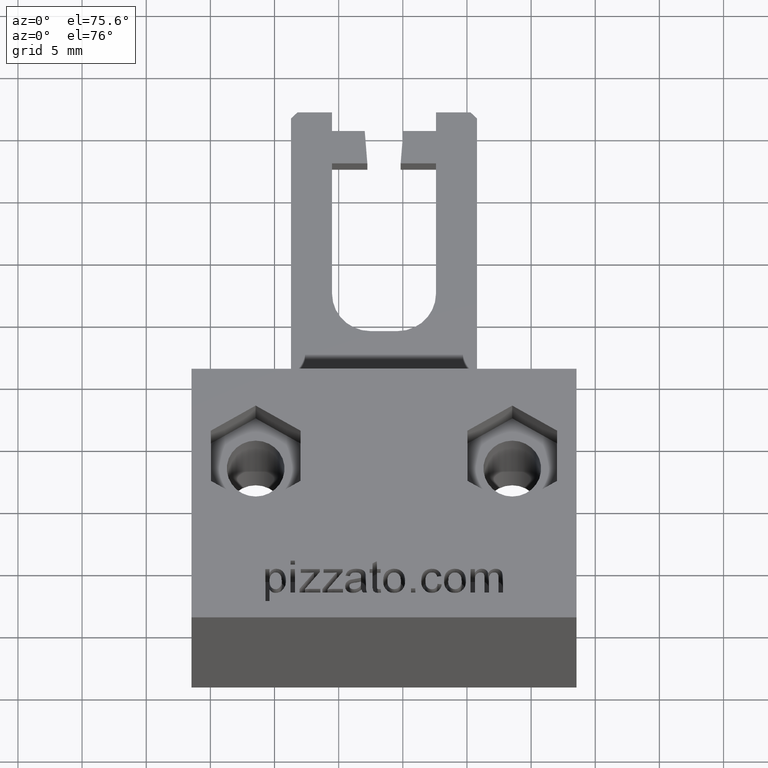
[diagram: clean part render]
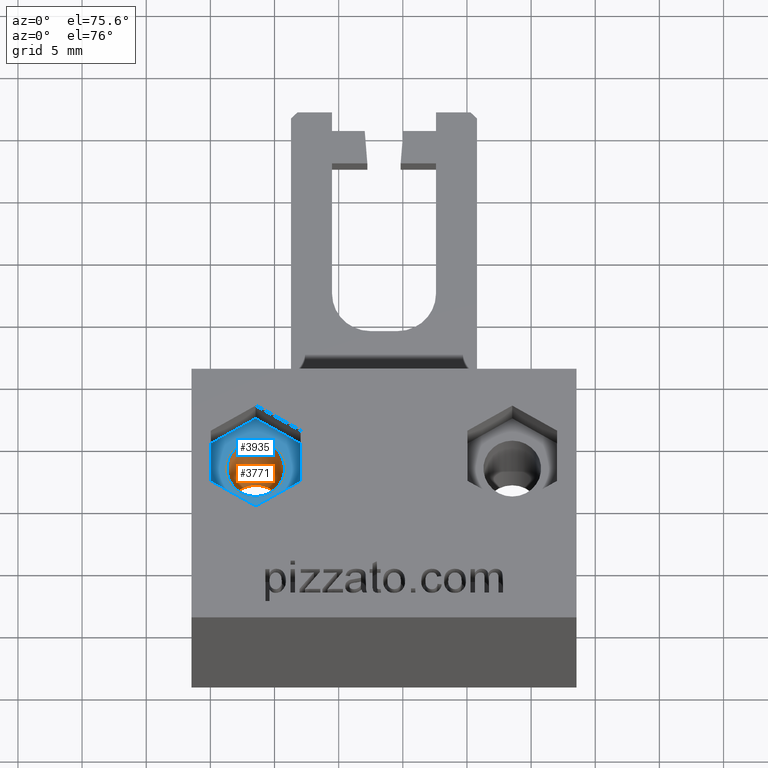
[diagram: same view with the hole feature highlighted: cylindrical wall and planar end face, labeled with their STEP entity ids]
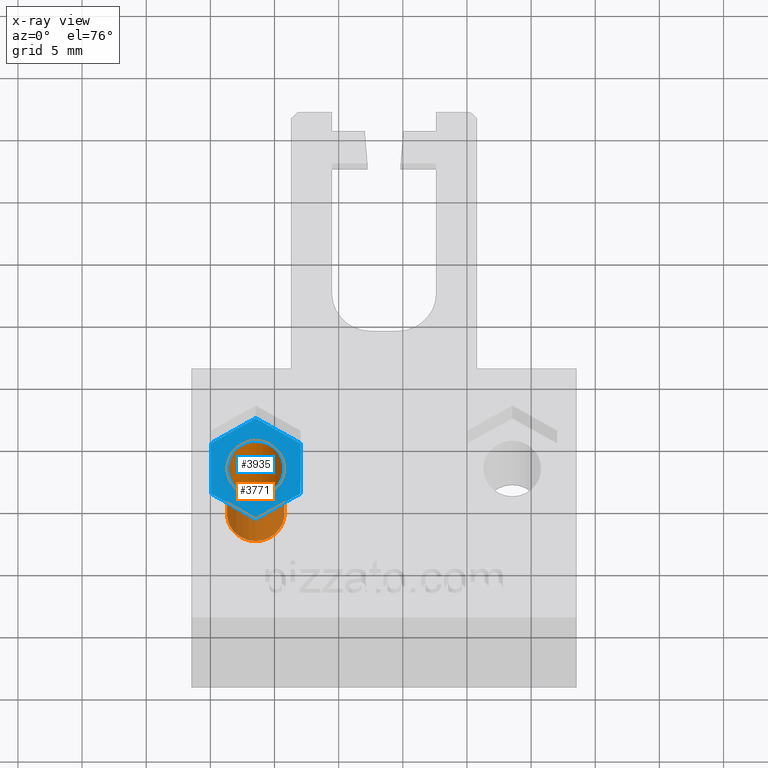
[diagram: x-ray of the same camera — body ghosted, the hole faces saturated]
A machine part, auxiliary view. The highlighted faces form one hole feature of diameter 4.5 mm: the cylindrical wall (entity #3771, orange) and its adjacent planar end face (entity #3935, blue) — they share a circular edge in the B-rep.
The next image is the same camera in x-ray (body ghosted, the hole faces saturated) — the bore reads through the body.
Wall:
#228=FACE_BOUND('',#522,.T.);
#264=CIRCLE('',#3983,2.25);
#266=CIRCLE('',#3993,2.25);
#270=CYLINDRICAL_SURFACE('',#3992,2.25);
#308=FACE_OUTER_BOUND('',#521,.T.);
#521=EDGE_LOOP('',(#2661));
#522=EDGE_LOOP('',(#2662));
#1598=VERTEX_POINT('',#4987);
#1612=VERTEX_POINT('',#5029);
#1998=EDGE_CURVE('',#1598,#1598,#264,.T.);
#2018=EDGE_CURVE('',#1612,#1612,#266,.T.);
#2661=ORIENTED_EDGE('',*,*,#1998,.T.);
#2662=ORIENTED_EDGE('',*,*,#2018,.T.);
#3771=ADVANCED_FACE('',(#308,#228),#270,.F.);
#3983=AXIS2_PLACEMENT_3D('',#4988,#4247,#4248);
#3992=AXIS2_PLACEMENT_3D('',#5028,#4283,#4284);
#3993=AXIS2_PLACEMENT_3D('',#5030,#4285,#4286);
#4247=DIRECTION('center_axis',(0.,0.,-1.));
#4248=DIRECTION('ref_axis',(-1.,0.,0.));
#4283=DIRECTION('center_axis',(0.,0.,-1.));
#4284=DIRECTION('ref_axis',(-1.,0.,0.));
#4285=DIRECTION('center_axis',(0.,0.,1.));
#4286=DIRECTION('ref_axis',(-1.,0.,0.));
#4987=CARTESIAN_POINT('',(10.7467227950761,25.002775558622,4.));
#4988=CARTESIAN_POINT('Origin',(12.9967227950761,25.002775558622,4.));
#5028=CARTESIAN_POINT('Origin',(12.9967227950761,25.002775558622,22.));
#5029=CARTESIAN_POINT('',(15.2467227950761,25.002775558622,18.));
#5030=CARTESIAN_POINT('Origin',(12.9967227950761,25.002775558622,18.));
End face:
#235=FACE_BOUND('',#693,.T.);
#266=CIRCLE('',#3993,2.25);
#472=FACE_OUTER_BOUND('',#692,.T.);
#692=EDGE_LOOP('',(#3405,#3406,#3407,#3408,#3409,#3410));
#693=EDGE_LOOP('',(#3411));
#1105=LINE('',#9805,#1518);
#1109=LINE('',#9812,#1522);
#1112=LINE('',#9818,#1525);
#1115=LINE('',#9824,#1528);
#1118=LINE('',#9830,#1531);
#1120=LINE('',#9833,#1533);
#1518=VECTOR('',#4760,4.04145240026689);
#1522=VECTOR('',#4766,4.04145159373737);
#1525=VECTOR('',#4771,4.04145196080003);
#1528=VECTOR('',#4776,4.04145159373749);
#1531=VECTOR('',#4781,4.041452400267);
#1533=VECTOR('',#4785,4.04145196080003);
#1612=VERTEX_POINT('',#5029);
#1902=VERTEX_POINT('',#9802);
#1903=VERTEX_POINT('',#9804);
#1905=VERTEX_POINT('',#9810);
#1907=VERTEX_POINT('',#9816);
#1909=VERTEX_POINT('',#9822);
#1911=VERTEX_POINT('',#9828);
#2018=EDGE_CURVE('',#1612,#1612,#266,.T.);
#2451=EDGE_CURVE('',#1902,#1903,#1105,.T.);
#2455=EDGE_CURVE('',#1905,#1902,#1109,.T.);
#2458=EDGE_CURVE('',#1907,#1905,#1112,.T.);
#2461=EDGE_CURVE('',#1909,#1907,#1115,.T.);
#2464=EDGE_CURVE('',#1911,#1909,#1118,.T.);
#2466=EDGE_CURVE('',#1903,#1911,#1120,.T.);
#3405=ORIENTED_EDGE('',*,*,#2466,.F.);
#3406=ORIENTED_EDGE('',*,*,#2451,.F.);
#3407=ORIENTED_EDGE('',*,*,#2455,.F.);
#3408=ORIENTED_EDGE('',*,*,#2458,.F.);
#3409=ORIENTED_EDGE('',*,*,#2461,.F.);
#3410=ORIENTED_EDGE('',*,*,#2464,.F.);
#3411=ORIENTED_EDGE('',*,*,#2018,.F.);
#3724=PLANE('',#4089);
#3935=ADVANCED_FACE('',(#472,#235),#3724,.F.);
#3993=AXIS2_PLACEMENT_3D('',#5030,#4285,#4286);
#4089=AXIS2_PLACEMENT_3D('',#9834,#4786,#4787);
#4285=DIRECTION('center_axis',(0.,0.,1.));
#4286=DIRECTION('ref_axis',(-1.,0.,0.));
#4760=DIRECTION('',(0.499999945630056,0.866025435174938,0.));
#4766=DIRECTION('',(-0.500000045412202,0.86602537756569,0.));
#4771=DIRECTION('',(-1.,0.,0.));
#4776=DIRECTION('',(-0.500000045412245,-0.866025377565665,0.));
#4781=DIRECTION('',(0.499999945630099,-0.866025435174913,0.));
#4785=DIRECTION('',(1.,0.,0.));
#4786=DIRECTION('center_axis',(0.,0.,-1.));
#4787=DIRECTION('ref_axis',(-1.,0.,0.));
#5029=CARTESIAN_POINT('',(15.2467227950761,25.002775558622,18.));
#5030=CARTESIAN_POINT('Origin',(12.9967227950761,25.002775558622,18.));
#9802=CARTESIAN_POINT('',(8.95527086035607,25.0027753351021,18.));
#9804=CARTESIAN_POINT('',(10.975996840756,28.502775908782,18.));
#9805=CARTESIAN_POINT('',(8.95527086035607,25.0027753351021,18.));
#9810=CARTESIAN_POINT('',(10.975996840756,21.5027756927222,18.));
#9812=CARTESIAN_POINT('',(10.975996840756,21.5027756927222,18.));
#9816=CARTESIAN_POINT('',(15.017448801556,21.5027756927222,18.));
#9818=CARTESIAN_POINT('',(15.017448801556,21.5027756927222,18.));
#9822=CARTESIAN_POINT('',(17.0381747819561,25.0027753351021,18.));
#9824=CARTESIAN_POINT('',(17.0381747819561,25.0027753351021,18.));
#9828=CARTESIAN_POINT('',(15.017448801556,28.502775908782,18.));
#9830=CARTESIAN_POINT('',(15.017448801556,28.502775908782,18.));
#9833=CARTESIAN_POINT('',(10.975996840756,28.502775908782,18.));
#9834=CARTESIAN_POINT('Origin',(12.9967228211561,25.002775761948,18.));